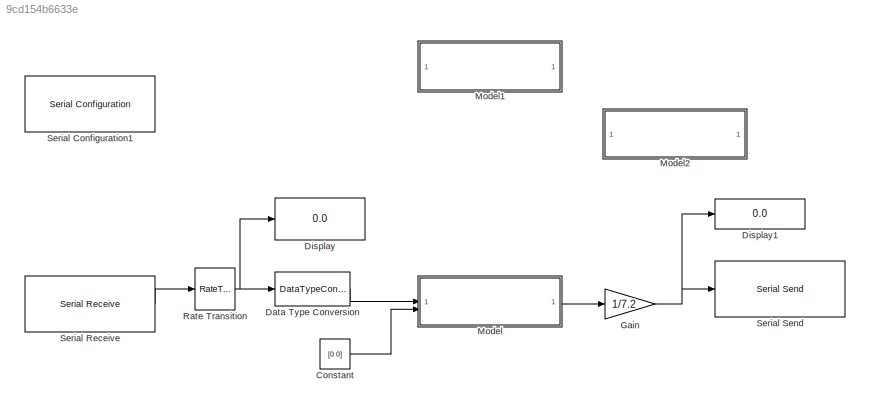
MODEL slx_9cd154b6633e
KIND model
CONFIG AbsTol = auto
CONFIG EnableMultiTasking = off
CONFIG FixedStep = auto
CONFIG MaxStep = auto
CONFIG MinStep = auto
CONFIG RelTol = 1e-3
CONFIG SampleTimeConstraint = Unconstrained
CONFIG SolverName = FixedStepAuto
CONFIG StartTime = 0.0
CONFIG StopTime = inf
BLOCK [Constant] Constant
  Value = [0 0]
BLOCK [DataTypeConversion] Data Type Conversion
  RndMeth = Floor
  SaturateOnIntegerOverflow = off
BLOCK [Display] Display
  Decimation = 1
BLOCK [Display] Display1
  Decimation = 1
BLOCK [Gain] Gain
  Gain = 1/7.2
BLOCK [ModelReference] Model
  ModelNameDialog = mpc_controller.slx
  ModelReferenceVersion = 1.9
BLOCK [ModelReference] Model1
  Commented = on
  ModelNameDialog = adaptive_mpc_controller.slx
  ModelReferenceVersion = 1.25
BLOCK [ModelReference] Model2
  Commented = on
  ModelNameDialog = state_feedback_controller.slx
  ModelReferenceVersion = 1.193
BLOCK [RateTransition] Rate Transition
BLOCK [Reference] Serial Configuration1  REF=instrumentseriallib/Serial Configuration
  LibrarySourceBlock = instrumentlib/Serial Configuration
  Priority = -200000
  SourceBlock = instrumentseriallib/Serial Configuration
  SourceType = system.SerialConfiguration
BLOCK [Reference] Serial Receive  REF=instrumentseriallib/Serial Receive
  LibrarySourceBlock = instrumentlib/Serial Receive
  Priority = 1
  SourceBlock = instrumentseriallib/Serial Receive
  SourceType = system.SerialReceive
BLOCK [Reference] Serial Send  REF=instrumentseriallib/Serial Send
  LibrarySourceBlock = instrumentlib/Serial Send
  Priority = 1
  SourceBlock = instrumentseriallib/Serial Send
  SourceType = system.SerialSend
LINE Constant:1 -> Model:2
LINE Data Type Conversion:1 -> Model:1
NET Gain:1 -> Display1:1, Serial Send:1
LINE Model:1 -> Gain:1
NET Rate Transition:1 -> Data Type Conversion:1, Display:1
LINE Serial Receive:1 -> Rate Transition:1
note: NET lines group one-source signal fan-out (src -> all destinations, sorted); 1:1 wires keep LINE
